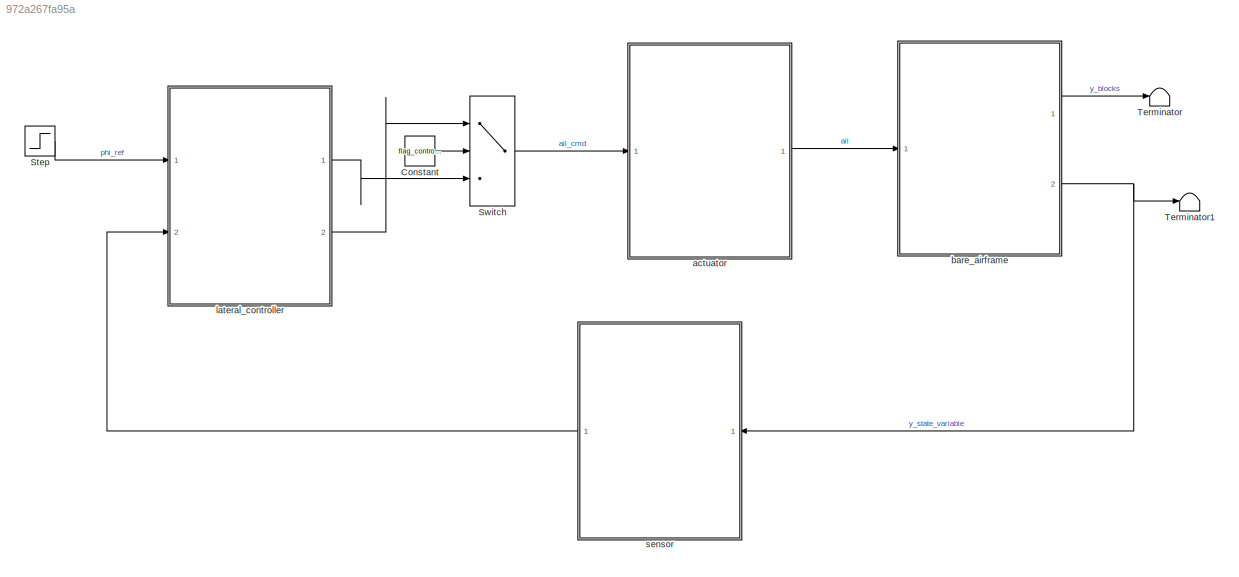
MODEL slx_972a267fa95a
KIND model
CONFIG AbsTol = auto
CONFIG EnableMultiTasking = off
CONFIG FixedStep = 0.005
CONFIG MaxStep = auto
CONFIG MinStep = auto
CONFIG RelTol = 1e-3
CONFIG SampleTimeConstraint = Unconstrained
CONFIG Solver = FixedStepAuto
CONFIG SolverName = FixedStepAuto
CONFIG StartTime = 0.0
CONFIG StopTime = 20
BLOCK [Constant] Constant
  Value = flag_controller
BLOCK [Step] Step
  SampleTime = 0
BLOCK [Switch] Switch
  Criteria = u2 > Threshold
  InputSameDT = off
  SaturateOnIntegerOverflow = off
  Threshold = 1
BLOCK [Terminator] Terminator
BLOCK [Terminator] Terminator1
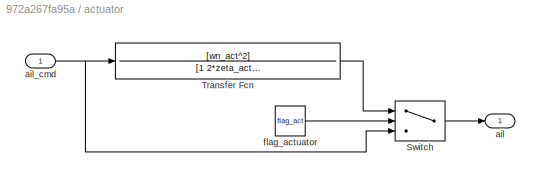
BLOCK [SubSystem] actuator
  Ports = [1, 1]
  RequestExecContextInheritance = off
BLOCK [Switch] actuator/Switch
  Criteria = u2 > Threshold
  InputSameDT = off
  SaturateOnIntegerOverflow = off
BLOCK [TransferFcn] actuator/Transfer Fcn
  Denominator = [1 2*zeta_act*wn_act wn_act^2]
  Numerator = [wn_act^2]
BLOCK [Outport] actuator/ail
  IconDisplay = Port number
  VectorParamsAs1DForOutWhenUnconnected = off
BLOCK [Inport] actuator/ail_cmd
  IconDisplay = Port number
BLOCK [Constant] actuator/flag_actuator
  Value = flag_act
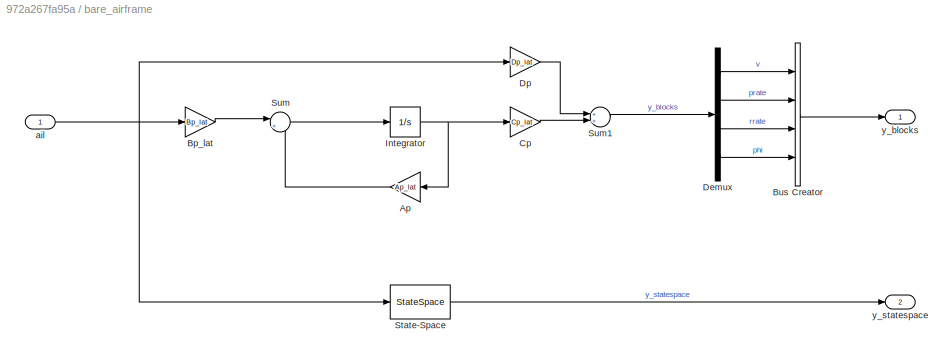
BLOCK [SubSystem] bare_airframe
  Ports = [1, 2]
  RequestExecContextInheritance = off
BLOCK [Gain] bare_airframe/Ap
  Gain = Ap_lat
  Multiplication = Matrix(K*u) (u vector)
  OutDataTypeStr = Inherit: Inherit via internal rule
  ParamDataTypeStr = Inherit: Inherit via internal rule
  SaturateOnIntegerOverflow = off
BLOCK [Gain] bare_airframe/Bp_lat
  Gain = Bp_lat
  Multiplication = Matrix(K*u) (u vector)
  OutDataTypeStr = Inherit: Inherit via internal rule
  ParamDataTypeStr = Inherit: Inherit via internal rule
  SaturateOnIntegerOverflow = off
BLOCK [BusCreator] bare_airframe/Bus Creator
  DisplayOption = bar
  InheritFromInputs = on
  Inputs = v,prate,rrate,phi
  Ports = [4, 1]
BLOCK [Gain] bare_airframe/Cp
  Gain = Cp_lat
  Multiplication = Matrix(K*u) (u vector)
  OutDataTypeStr = Inherit: Inherit via internal rule
  ParamDataTypeStr = Inherit: Inherit via internal rule
  SaturateOnIntegerOverflow = off
BLOCK [Demux] bare_airframe/Demux
  DisplayOption = bar
  Ports = [1, 4]
BLOCK [Gain] bare_airframe/Dp
  Gain = Dp_lat
  Multiplication = Matrix(K*u) (u vector)
  OutDataTypeStr = Inherit: Inherit via internal rule
  ParamDataTypeStr = Inherit: Inherit via internal rule
  SaturateOnIntegerOverflow = off
BLOCK [Integrator] bare_airframe/Integrator
  ContinuousStateAttributes = {'u', 'w','q','theta'}
  InitialCondition = zeros(4,1)
  Ports = [1, 1]
BLOCK [StateSpace] bare_airframe/State-Space
  A = Ap_lat
  B = Bp_lat
  C = Cp_lat
  D = Dp_lat
  InitialCondition = 0
  Ports = [1, 1]
BLOCK [Sum] bare_airframe/Sum
  IconShape = round
  InputSameDT = off
  Inputs = |++
  OutDataTypeStr = Inherit: Inherit via internal rule
  Ports = [2, 1]
  SaturateOnIntegerOverflow = off
BLOCK [Sum] bare_airframe/Sum1
  InputSameDT = off
  OutDataTypeStr = Inherit: Inherit via internal rule
  Ports = [2, 1]
  SaturateOnIntegerOverflow = off
BLOCK [Inport] bare_airframe/ail
  IconDisplay = Port number
BLOCK [Outport] bare_airframe/y_blocks
  IconDisplay = Port number
  VectorParamsAs1DForOutWhenUnconnected = off
BLOCK [Outport] bare_airframe/y_statespace
  IconDisplay = Port number
  Port = 2
  VectorParamsAs1DForOutWhenUnconnected = off
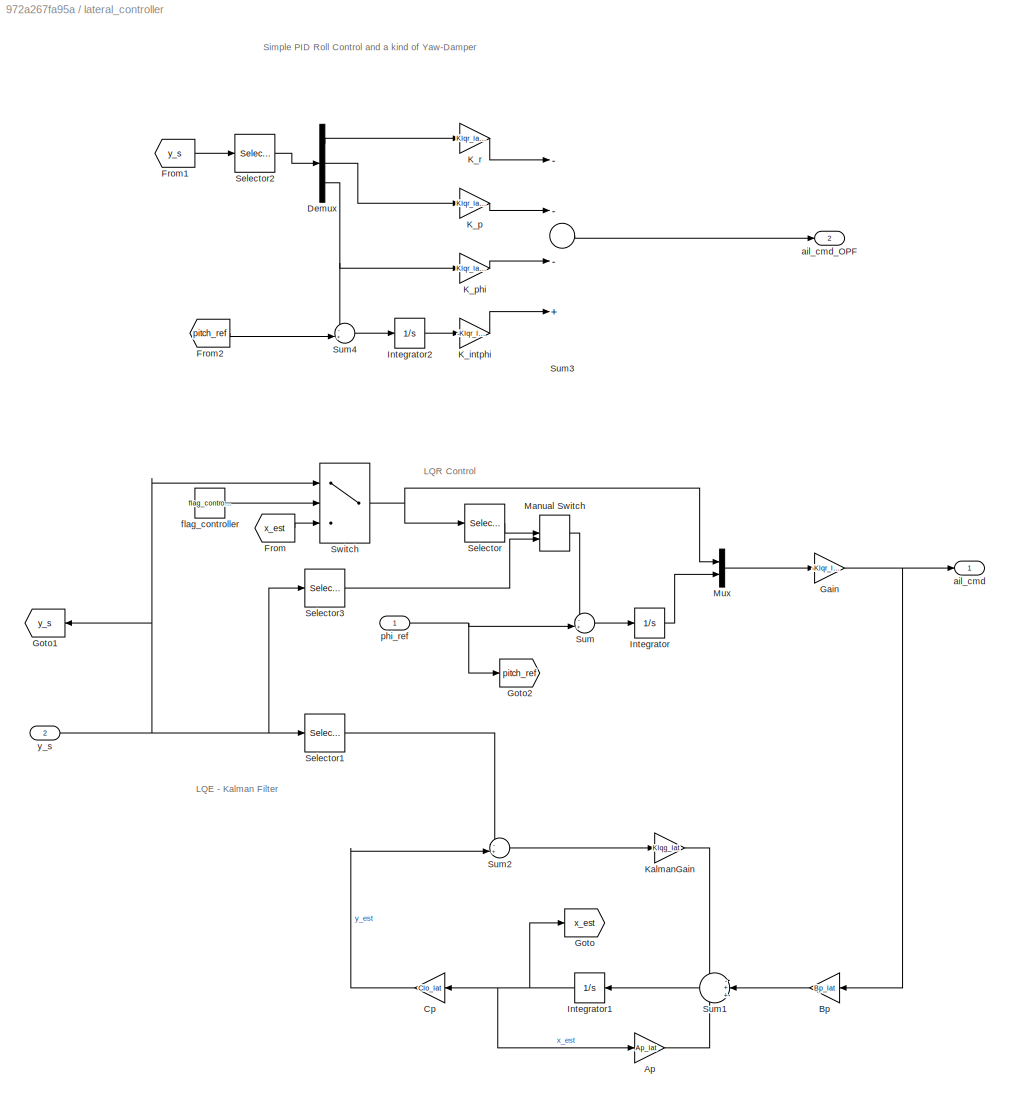
BLOCK [SubSystem] lateral_controller
  Ports = [2, 2]
  RequestExecContextInheritance = off
BLOCK [Gain] lateral_controller/Ap
  Gain = Ap_lat
  Multiplication = Matrix(K*u) (u vector)
  OutDataTypeStr = Inherit: Inherit via internal rule
  ParamDataTypeStr = Inherit: Inherit via internal rule
  SaturateOnIntegerOverflow = off
BLOCK [Gain] lateral_controller/Bp
  Gain = Bp_lat
  Multiplication = Matrix(K*u) (u vector)
  OutDataTypeStr = Inherit: Inherit via internal rule
  ParamDataTypeStr = Inherit: Inherit via internal rule
  SaturateOnIntegerOverflow = off
BLOCK [Gain] lateral_controller/Cp
  Gain = Clo_lat
  Multiplication = Matrix(K*u) (u vector)
  OutDataTypeStr = Inherit: Inherit via internal rule
  ParamDataTypeStr = Inherit: Inherit via internal rule
  SaturateOnIntegerOverflow = off
BLOCK [Demux] lateral_controller/Demux
  DisplayOption = bar
  Outputs = 3
  Ports = [1, 3]
BLOCK [From] lateral_controller/From
  GotoTag = x_est
BLOCK [From] lateral_controller/From1
  GotoTag = y_s
BLOCK [From] lateral_controller/From2
  GotoTag = pitch_ref
BLOCK [Gain] lateral_controller/Gain
  Gain = -Klqr_lat_gain
  Multiplication = Matrix(K*u) (u vector)
  OutDataTypeStr = Inherit: Inherit via internal rule
  ParamDataTypeStr = Inherit: Inherit via internal rule
  SaturateOnIntegerOverflow = off
BLOCK [Goto] lateral_controller/Goto
  GotoTag = x_est
BLOCK [Goto] lateral_controller/Goto1
  GotoTag = y_s
BLOCK [Goto] lateral_controller/Goto2
  GotoTag = pitch_ref
BLOCK [Integrator] lateral_controller/Integrator
  Ports = [1, 1]
BLOCK [Integrator] lateral_controller/Integrator1
  ContinuousStateAttributes = {'v', 'p','r','phi'}
  InitialCondition = zeros(4,1)
  Ports = [1, 1]
BLOCK [Integrator] lateral_controller/Integrator2
  Ports = [1, 1]
BLOCK [Gain] lateral_controller/K_intphi
  Gain = -Klqr_lat_gain(5)
  OutDataTypeStr = Inherit: Inherit via internal rule
  ParamDataTypeStr = Inherit: Inherit via internal rule
  SaturateOnIntegerOverflow = off
BLOCK [Gain] lateral_controller/K_p
  Gain = Klqr_lat_gain(2)
  OutDataTypeStr = Inherit: Inherit via internal rule
  ParamDataTypeStr = Inherit: Inherit via internal rule
  SaturateOnIntegerOverflow = off
BLOCK [Gain] lateral_controller/K_phi
  Gain = Klqr_lat_gain(4)
  OutDataTypeStr = Inherit: Inherit via internal rule
  ParamDataTypeStr = Inherit: Inherit via internal rule
  SaturateOnIntegerOverflow = off
BLOCK [Gain] lateral_controller/K_r
  Gain = Klqr_lat_gain(3)
  OutDataTypeStr = Inherit: Inherit via internal rule
  ParamDataTypeStr = Inherit: Inherit via internal rule
  SaturateOnIntegerOverflow = off
BLOCK [Gain] lateral_controller/KalmanGain
  Gain = Klqg_lat
  Multiplication = Matrix(K*u) (u vector)
  OutDataTypeStr = Inherit: Inherit via internal rule
  ParamDataTypeStr = Inherit: Inherit via internal rule
  SaturateOnIntegerOverflow = off
BLOCK [ManualSwitch] lateral_controller/Manual Switch
  CurrentSetting = 0
BLOCK [Mux] lateral_controller/Mux
  DisplayOption = bar
  Inputs = 2
  Ports = [2, 1]
BLOCK [Selector] lateral_controller/Selector
  IndexOptions = Index vector (dialog)
  Indices = 4
  InputPortWidth = 4
  OutputSizes = 1
  Ports = [1, 1]
BLOCK [Selector] lateral_controller/Selector1
  IndexOptions = Index vector (dialog)
  Indices = [2 3 4]
  InputPortWidth = 4
  OutputSizes = 1
  Ports = [1, 1]
BLOCK [Selector] lateral_controller/Selector2
  IndexOptions = Index vector (dialog)
  Indices = [3 2 4]
  InputPortWidth = 4
  OutputSizes = 1
  Ports = [1, 1]
BLOCK [Selector] lateral_controller/Selector3
  IndexOptions = Index vector (dialog)
  Indices = 4
  InputPortWidth = 4
  OutputSizes = 1
  Ports = [1, 1]
BLOCK [Sum] lateral_controller/Sum
  IconShape = round
  InputSameDT = off
  Inputs = -+|
  OutDataTypeStr = Inherit: Inherit via internal rule
  Ports = [2, 1]
  SaturateOnIntegerOverflow = off
BLOCK [Sum] lateral_controller/Sum1
  IconShape = round
  InputSameDT = off
  Inputs = -++
  OutDataTypeStr = Inherit: Inherit via internal rule
  Ports = [3, 1]
  SaturateOnIntegerOverflow = off
BLOCK [Sum] lateral_controller/Sum2
  IconShape = round
  InputSameDT = off
  Inputs = -+|
  OutDataTypeStr = Inherit: Inherit via internal rule
  Ports = [2, 1]
  SaturateOnIntegerOverflow = off
BLOCK [Sum] lateral_controller/Sum3
  InputSameDT = off
  Inputs = ---+
  OutDataTypeStr = Inherit: Inherit via internal rule
  Ports = [4, 1]
  SaturateOnIntegerOverflow = off
BLOCK [Sum] lateral_controller/Sum4
  IconShape = round
  InputSameDT = off
  Inputs = -+|
  OutDataTypeStr = Inherit: Inherit via internal rule
  Ports = [2, 1]
  SaturateOnIntegerOverflow = off
BLOCK [Switch] lateral_controller/Switch
  Criteria = u2 > Threshold
  InputSameDT = off
  SaturateOnIntegerOverflow = off
BLOCK [Outport] lateral_controller/ail_cmd
  IconDisplay = Port number
  VectorParamsAs1DForOutWhenUnconnected = off
BLOCK [Outport] lateral_controller/ail_cmd_OPF
  IconDisplay = Port number
  Port = 2
  VectorParamsAs1DForOutWhenUnconnected = off
BLOCK [Constant] lateral_controller/flag_controller
  Value = flag_controller
BLOCK [Inport] lateral_controller/phi_ref
  IconDisplay = Port number
BLOCK [Inport] lateral_controller/y_s 
  IconDisplay = Port number
  Port = 2
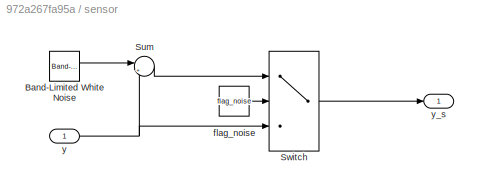
BLOCK [SubSystem] sensor
  Ports = [1, 1]
  RequestExecContextInheritance = off
BLOCK [Reference] sensor/Band-Limited White Noise  REF=simulink/Sources/Band-Limited
White Noise
  Ports = [0, 1]
  SourceBlock = simulink/Sources/Band-Limited\nWhite Noise
  SourceProductBaseCode = SL
  SourceProductName = Simulink
  SourceType = Band-Limited White Noise.
BLOCK [Sum] sensor/Sum
  IconShape = round
  InputSameDT = off
  Inputs = |++
  OutDataTypeStr = Inherit: Inherit via internal rule
  Ports = [2, 1]
  SaturateOnIntegerOverflow = off
BLOCK [Switch] sensor/Switch
  Criteria = u2 > Threshold
  InputSameDT = off
  SaturateOnIntegerOverflow = off
BLOCK [Constant] sensor/flag_noise
  Value = flag_noise
BLOCK [Inport] sensor/y
  IconDisplay = Port number
BLOCK [Outport] sensor/y_s
  IconDisplay = Port number
  VectorParamsAs1DForOutWhenUnconnected = off
ANNOTATION lateral_controller: LQE - Kalman Filter
ANNOTATION lateral_controller: LQR Control
ANNOTATION lateral_controller: Simple PID Roll Control and a kind of Yaw-Damper
LINE Constant:1 -> Switch:2
LINE Step:1 -> lateral_controller:1
LINE Switch:1 -> actuator:1
LINE actuator/Switch:1 -> actuator/ail:1
LINE actuator/Transfer Fcn:1 -> actuator/Switch:1
NET actuator/ail_cmd:1 -> actuator/Switch:3, actuator/Transfer Fcn:1
LINE actuator/flag_actuator:1 -> actuator/Switch:2
LINE actuator:1 -> bare_airframe:1
LINE bare_airframe/Ap:1 -> bare_airframe/Sum:2
LINE bare_airframe/Bp_lat:1 -> bare_airframe/Sum:1
LINE bare_airframe/Bus Creator:1 -> bare_airframe/y_blocks:1
LINE bare_airframe/Cp:1 -> bare_airframe/Sum1:2
LINE bare_airframe/Demux:1 -> bare_airframe/Bus Creator:1
LINE bare_airframe/Demux:2 -> bare_airframe/Bus Creator:2
LINE bare_airframe/Demux:3 -> bare_airframe/Bus Creator:3
LINE bare_airframe/Demux:4 -> bare_airframe/Bus Creator:4
LINE bare_airframe/Dp:1 -> bare_airframe/Sum1:1
NET bare_airframe/Integrator:1 -> bare_airframe/Ap:1, bare_airframe/Cp:1
LINE bare_airframe/State-Space:1 -> bare_airframe/y_statespace:1
LINE bare_airframe/Sum1:1 -> bare_airframe/Demux:1
LINE bare_airframe/Sum:1 -> bare_airframe/Integrator:1
NET bare_airframe/ail:1 -> bare_airframe/Bp_lat:1, bare_airframe/Dp:1, bare_airframe/State-Space:1
LINE bare_airframe:1 -> Terminator:1
NET bare_airframe:2 -> Terminator1:1, sensor:1
LINE lateral_controller/Ap:1 -> lateral_controller/Sum1:3
LINE lateral_controller/Bp:1 -> lateral_controller/Sum1:2
LINE lateral_controller/Cp:1 -> lateral_controller/Sum2:2
LINE lateral_controller/Demux:1 -> lateral_controller/K_r:1
LINE lateral_controller/Demux:2 -> lateral_controller/K_p:1
NET lateral_controller/Demux:3 -> lateral_controller/K_phi:1, lateral_controller/Sum4:1
LINE lateral_controller/From1:1 -> lateral_controller/Selector2:1
LINE lateral_controller/From2:1 -> lateral_controller/Sum4:2
LINE lateral_controller/From:1 -> lateral_controller/Switch:3
NET lateral_controller/Gain:1 -> lateral_controller/Bp:1, lateral_controller/ail_cmd:1
NET lateral_controller/Integrator1:1 -> lateral_controller/Ap:1, lateral_controller/Cp:1, lateral_controller/Goto:1
LINE lateral_controller/Integrator2:1 -> lateral_controller/K_intphi:1
LINE lateral_controller/Integrator:1 -> lateral_controller/Mux:2
LINE lateral_controller/K_intphi:1 -> lateral_controller/Sum3:4
LINE lateral_controller/K_p:1 -> lateral_controller/Sum3:2
LINE lateral_controller/K_phi:1 -> lateral_controller/Sum3:3
LINE lateral_controller/K_r:1 -> lateral_controller/Sum3:1
LINE lateral_controller/KalmanGain:1 -> lateral_controller/Sum1:1
LINE lateral_controller/Manual Switch:1 -> lateral_controller/Sum:1
LINE lateral_controller/Mux:1 -> lateral_controller/Gain:1
LINE lateral_controller/Selector1:1 -> lateral_controller/Sum2:1
LINE lateral_controller/Selector2:1 -> lateral_controller/Demux:1
LINE lateral_controller/Selector3:1 -> lateral_controller/Manual Switch:2
LINE lateral_controller/Selector:1 -> lateral_controller/Manual Switch:1
LINE lateral_controller/Sum1:1 -> lateral_controller/Integrator1:1
LINE lateral_controller/Sum2:1 -> lateral_controller/KalmanGain:1
LINE lateral_controller/Sum3:1 -> lateral_controller/ail_cmd_OPF:1
LINE lateral_controller/Sum4:1 -> lateral_controller/Integrator2:1
LINE lateral_controller/Sum:1 -> lateral_controller/Integrator:1
NET lateral_controller/Switch:1 -> lateral_controller/Mux:1, lateral_controller/Selector:1
LINE lateral_controller/flag_controller:1 -> lateral_controller/Switch:2
NET lateral_controller/phi_ref:1 -> lateral_controller/Goto2:1, lateral_controller/Sum:2
NET lateral_controller/y_s :1 -> lateral_controller/Goto1:1, lateral_controller/Selector1:1, lateral_controller/Selector3:1, lateral_controller/Switch:1
LINE lateral_controller:1 -> Switch:3
LINE lateral_controller:2 -> Switch:1
LINE sensor/Band-Limited White Noise:1 -> sensor/Sum:1
LINE sensor/Sum:1 -> sensor/Switch:1
LINE sensor/Switch:1 -> sensor/y_s:1
LINE sensor/flag_noise:1 -> sensor/Switch:2
NET sensor/y:1 -> sensor/Sum:2, sensor/Switch:3
LINE sensor:1 -> lateral_controller:2
note: NET lines group one-source signal fan-out (src -> all destinations, sorted); 1:1 wires keep LINE
